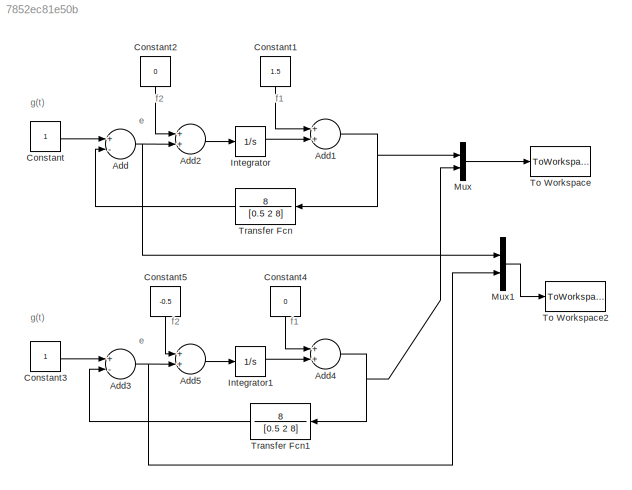
MODEL slx_7852ec81e50b
KIND model
BLOCK [Sum] Add
  InputSameDT = off
  Inputs = +-
  OutDataTypeStr = Inherit: Inherit via internal rule
  Ports = [2, 1]
  SaturateOnIntegerOverflow = off
BLOCK [Sum] Add1
  InputSameDT = off
  OutDataTypeStr = Inherit: Inherit via internal rule
  Ports = [2, 1]
  SaturateOnIntegerOverflow = off
BLOCK [Sum] Add2
  InputSameDT = off
  OutDataTypeStr = Inherit: Inherit via internal rule
  Ports = [2, 1]
  SaturateOnIntegerOverflow = off
BLOCK [Sum] Add3
  InputSameDT = off
  Inputs = +-
  OutDataTypeStr = Inherit: Inherit via internal rule
  Ports = [2, 1]
  SaturateOnIntegerOverflow = off
BLOCK [Sum] Add4
  InputSameDT = off
  OutDataTypeStr = Inherit: Inherit via internal rule
  Ports = [2, 1]
  SaturateOnIntegerOverflow = off
BLOCK [Sum] Add5
  InputSameDT = off
  OutDataTypeStr = Inherit: Inherit via internal rule
  Ports = [2, 1]
  SaturateOnIntegerOverflow = off
BLOCK [Constant] Constant
BLOCK [Constant] Constant1
  Value = 1.5
BLOCK [Constant] Constant2
  Value = 0
BLOCK [Constant] Constant3
BLOCK [Constant] Constant4
  Value = 0
BLOCK [Constant] Constant5
  Value = -0.5
BLOCK [Integrator] Integrator
  Ports = [1, 1]
BLOCK [Integrator] Integrator1
  Ports = [1, 1]
BLOCK [Mux] Mux
  DisplayOption = bar
  Inputs = 2
  Ports = [2, 1]
BLOCK [Mux] Mux1
  DisplayOption = bar
  Inputs = 2
  Ports = [2, 1]
BLOCK [ToWorkspace] To Workspace
  FixptAsFi = on
  MaxDataPoints = inf
  Ports = [1]
  SampleTime = -1
  Save2DSignal = 3-D array (concatenate along third dimension)
  SaveFormat = Timeseries
  VariableName = simout
BLOCK [ToWorkspace] To Workspace2
  FixptAsFi = on
  MaxDataPoints = inf
  Ports = [1]
  SampleTime = -1
  Save2DSignal = 3-D array (concatenate along third dimension)
  SaveFormat = Timeseries
  VariableName = simout1
BLOCK [TransferFcn] Transfer Fcn
  Denominator = [0.5 2 8]
  Numerator = 8
BLOCK [TransferFcn] Transfer Fcn1
  Denominator = [0.5 2 8]
  Numerator = 8
ANNOTATION (root): e
ANNOTATION (root): f1
ANNOTATION (root): f2
ANNOTATION (root): g(t)
NET Add1:1 -> Mux:1, Transfer Fcn:1
LINE Add2:1 -> Integrator:1
NET Add3:1 -> Add5:2, Mux1:2
NET Add4:1 -> Mux:2, Transfer Fcn1:1
LINE Add5:1 -> Integrator1:1
NET Add:1 -> Add2:2, Mux1:1
LINE Constant1:1 -> Add1:1
LINE Constant2:1 -> Add2:1
LINE Constant3:1 -> Add3:1
LINE Constant4:1 -> Add4:1
LINE Constant5:1 -> Add5:1
LINE Constant:1 -> Add:1
LINE Integrator1:1 -> Add4:2
LINE Integrator:1 -> Add1:2
LINE Mux1:1 -> To Workspace2:1
LINE Mux:1 -> To Workspace:1
LINE Transfer Fcn1:1 -> Add3:2
LINE Transfer Fcn:1 -> Add:2
note: NET lines group one-source signal fan-out (src -> all destinations, sorted); 1:1 wires keep LINE
